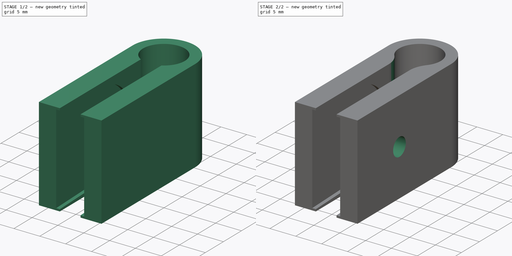
[diagram: build sequence overview — one tinted view per stage of 2, left to right]
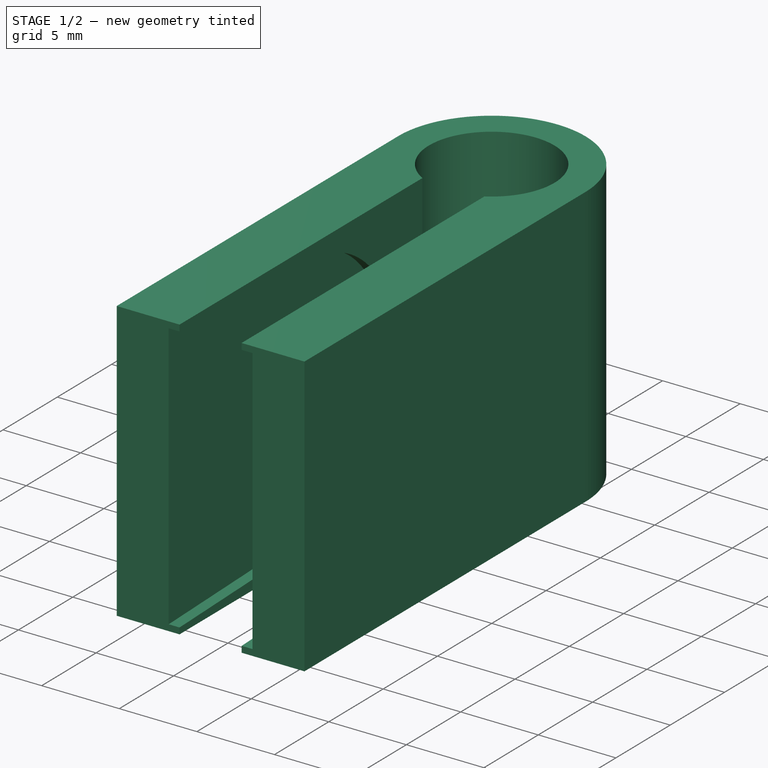
[diagram: stage 1 of 2 — iso view after this stage's code; geometry added in this stage tinted green]
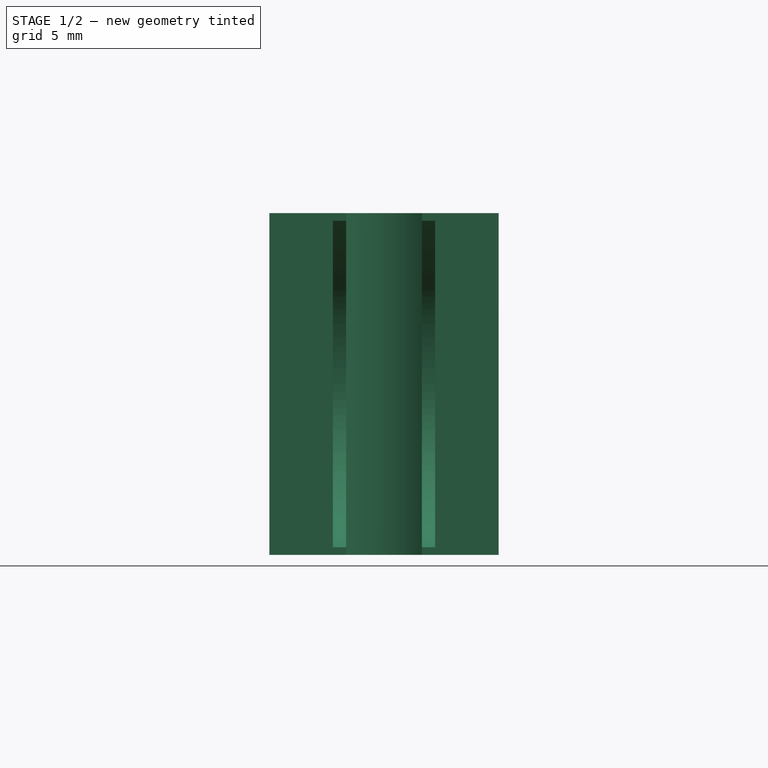
[diagram: stage 1 of 2 — front view after this stage's code; geometry added in this stage tinted green]
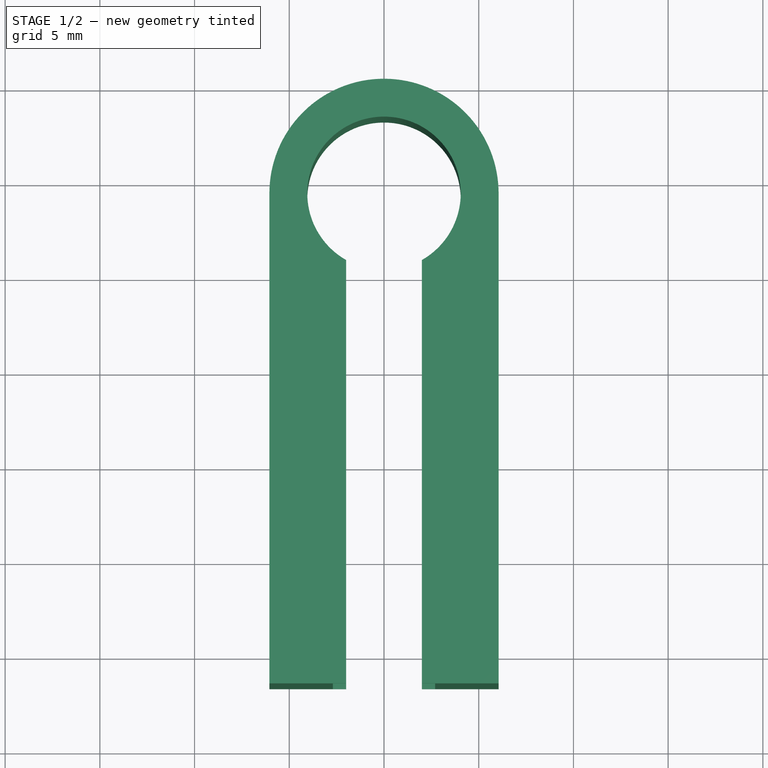
[diagram: stage 1 of 2 — top view after this stage's code; geometry added in this stage tinted green]
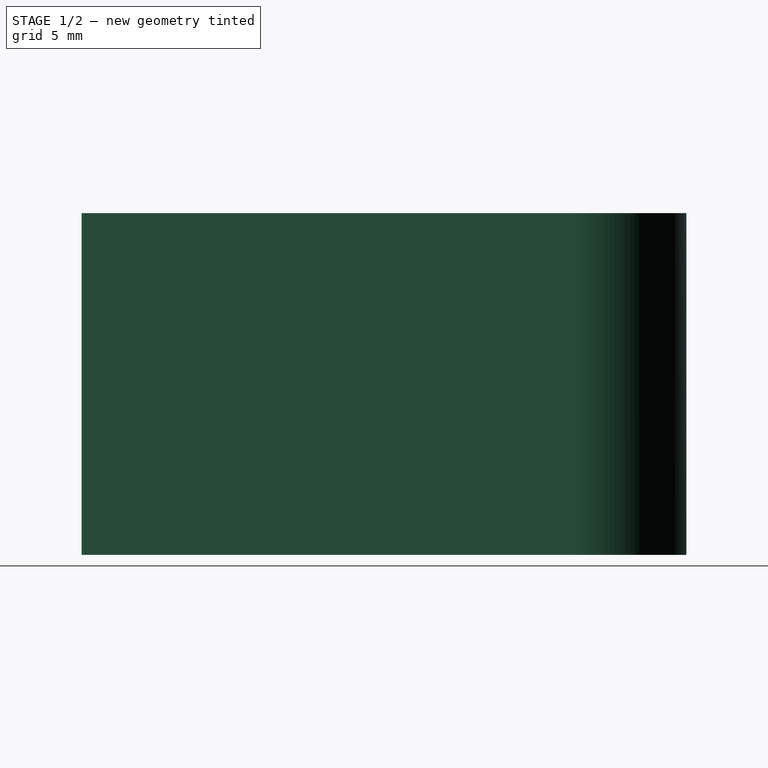
[diagram: stage 1 of 2 — right view after this stage's code; geometry added in this stage tinted green]
FCSTD DOCUMENT  (FreeCAD 0.18.3R)
Label: DialHolder
License: All rights reserved
LicenseURL: http://en.wikipedia.org/wiki/All_rights_reserved
objects: Sketcher::SketchObject×4, PartDesign::Pocket×2, PartDesign::Pad×1, PartDesign::Fillet×1, PartDesign::Body×1, App::Part×1
note: 12 computed .brp shape members not serialized (recipe doc carries the construction recipe); baked Part::Feature solids carry a one-line shape summary decoded from their .brp

FEATURE [Sketcher::SketchObject] Sketch
  MapMode = 5
  Placement = pos=(0,0,0) rot=(0.57735,0.57735,0.57735;2.0944rad)
  Support = -> [YZ_Plane001]
  sketch-geometry (13):
    g0: Circle CenterX=0 CenterY=0 CenterZ=0 NormalX=0 NormalY=0 NormalZ=1 AngleXU=0 Radius=3.45
    g1: ArcOfCircle CenterX=0 CenterY=0 CenterZ=0 NormalX=0 NormalY=0 NormalZ=1 AngleXU=0 Radius=7.80444 StartAngle=4.74611 EndAngle=7.82026
    g2: LineSegment StartX=-11.5956 StartY=8.62064 StartZ=0 EndX=-11.5956 EndY=-8.62064 EndZ=0
    g3: LineSegment [constr] StartX=0 StartY=0 StartZ=0 EndX=-11.5956 EndY=0 EndZ=0
    g4: LineSegment StartX=-11.5956 StartY=8.2 StartZ=0 EndX=0.263099 EndY=7.8 EndZ=0
    g5: LineSegment StartX=-11.5956 StartY=-8.2 StartZ=0 EndX=0.263099 EndY=-7.8 EndZ=0
    g6: GeomPoint X=7.80444 Y=0 Z=0
    g7: LineSegment StartX=-11.5956 StartY=8.62064 StartZ=0 EndX=0.277271 EndY=8.22016 EndZ=0
    g8: LineSegment StartX=-11.5956 StartY=-8.62064 StartZ=0 EndX=0.277273 EndY=-8.22016 EndZ=0
    g9: ArcOfCircle CenterX=0 CenterY=0 CenterZ=0 NormalX=0 NormalY=0 NormalZ=1 AngleXU=0 Radius=8.22484 StartAngle=4.74611 EndAngle=7.82026
    g10: LineSegment [constr] StartX=0.277273 StartY=-8.22016 StartZ=0 EndX=0.263099 EndY=-7.8 EndZ=0
    g11: LineSegment [constr] StartX=0.277271 StartY=8.22016 StartZ=0 EndX=0.263099 EndY=7.8 EndZ=0
    g12: LineSegment StartX=8.22484 StartY=7.95208 StartZ=0 EndX=8.22484 EndY=-7.95208 EndZ=0
  constraints (35):
    c: Coincident(g1,g0)
    c: Radius(g0) = 3.45  'Radius'
    c: Vertical(g2)
    c: Coincident(g3,g0)
    c: PointOnObject(g3,g2)
    c: Tangent(g1,g5) = -1.5708
    c: Tangent(g1,g4) = 1.5708
    c: PointOnObject(g6,g1)
    c: PointOnObject(g6,g3)
    c: DistanceX(g2,g6) = 19.4
    c: DistanceY(g1,g1) = 15.6
    c: Coincident(g9,g0)
    c: Coincident(g9,g8)
    c: Coincident(g9,g7)
    c: Coincident(g10,g8)
    c: Coincident(g10,g1)
    c: Coincident(g11,g7)
    c: Coincident(g11,g1)
    c: PointOnObject(g0,g11)
    c: Equal(g10,g11)
    c: Parallel(g7,g4)
    c: PointOnObject(g4,g2)
    c: Coincident(g2,g8)
    c: Coincident(g2,g7)
    c: Symmetric(g5,g4,g3)
    c: Horizontal(g3)
    c: DistanceY(g5,g4) = 16.4
    c: Parallel(g8,g5)
    c: Distance(g11) = 0.4204
    c: Coincident(g0,g-1)  '__ANCHOR__'
    c: Vertical(g12)
    c: Tangent(g12,g9)
    c: PointOnObject(g12,g7)
    c: PointOnObject(g12,g8)
    c: DistanceY(g2,g2) = 17.2413  'Height'
FEATURE [Sketcher::SketchObject] Sketch001
  ExternalGeometry = -> [Sketch]
  MapMode = 5
  Support = -> [XY_Plane001]
  expr: Constraints[38] = Constraints.Rr + 2mm
  sketch-geometry (15):
    g0: LineSegment [constr] StartX=1.8e-15 StartY=8.22484 StartZ=0 EndX=-2.6e-15 EndY=-11.5956 EndZ=0
    g1: Circle [constr] CenterX=4.3e-15 CenterY=14.2748 CenterZ=0 NormalX=0 NormalY=0 NormalZ=1 AngleXU=0 Radius=4.05
    g2: LineSegment [constr] StartX=-4.05 StartY=18.3248 StartZ=0 EndX=4.05 EndY=18.3248 EndZ=0
    g3: LineSegment [constr] StartX=4.05 StartY=18.3248 StartZ=0 EndX=4.05 EndY=10.2248 EndZ=0
    g4: LineSegment [constr] StartX=4.05 StartY=10.2248 StartZ=0 EndX=-4.05 EndY=10.2248 EndZ=0
    g5: LineSegment [constr] StartX=-4.05 StartY=10.2248 StartZ=0 EndX=-4.05 EndY=18.3248 EndZ=0
    g6: ArcOfCircle CenterX=4.3e-15 CenterY=14.2748 CenterZ=0 NormalX=0 NormalY=0 NormalZ=1 AngleXU=0 Radius=4.05 StartAngle=5.22887 EndAngle=10.4791
    g7: LineSegment StartX=-2 StartY=10.7531 StartZ=0 EndX=-2 EndY=-11.5956 EndZ=0
    g8: LineSegment StartX=2 StartY=10.7531 StartZ=0 EndX=2 EndY=-11.5956 EndZ=0
    g9: LineSegment [constr] StartX=-2 StartY=-11.5956 StartZ=0 EndX=2 EndY=-11.5956 EndZ=0
    g10: ArcOfCircle CenterX=4.3e-15 CenterY=14.2748 CenterZ=0 NormalX=0 NormalY=0 NormalZ=1 AngleXU=0 Radius=6.05 StartAngle=6.27219 EndAngle=9.43292
    g11: LineSegment StartX=-6.0498 StartY=14.2256 StartZ=0 EndX=-6.0498 EndY=-11.5956 EndZ=0
    g12: LineSegment StartX=6.04963 StartY=14.2083 StartZ=0 EndX=6.04963 EndY=-11.5956 EndZ=0
    g13: LineSegment StartX=-6.0498 StartY=-11.5956 StartZ=0 EndX=-2 EndY=-11.5956 EndZ=0
    g14: LineSegment StartX=2 StartY=-11.5956 StartZ=0 EndX=6.04963 EndY=-11.5956 EndZ=0
  constraints (40):
    c: Coincident(g0,g-3)
    c: Coincident(g0,g-4)
    c: Radius(g1) = 4.05  'Rr'
    c: Coincident(g2,g3)
    c: Coincident(g3,g4)
    c: Coincident(g4,g5)
    c: Coincident(g5,g2)
    c: Horizontal(g2)
    c: Horizontal(g4)
    c: Vertical(g3)
    c: Vertical(g5)
    c: Equal(g2,g3)
    c: Tangent(g3,g1)
    c: Tangent(g4,g1)
    c: Tangent(g5,g1)
    c: DistanceY(g0,g4) = 2
    c: Coincident(g6,g1)
    c: PointOnObject(g6,g1)
    c: Symmetric(g6,g6,g0)
    c: Coincident(g7,g6)
    c: Vertical(g7)
    c: Coincident(g8,g6)
    c: Vertical(g8)
    c: Coincident(g9,g7)
    c: Coincident(g9,g8)
    c: Horizontal(g9)
    c: PointOnObject(g0,g9)
    c: Coincident(g10,g6)
    c: Coincident(g11,g10)
    c: Vertical(g11)
    c: Coincident(g12,g10)
    c: Vertical(g12)
    c: Coincident(g13,g11)
    c: Coincident(g13,g7)
    c: Horizontal(g13)
    c: Coincident(g14,g8)
    c: Coincident(g14,g12)
    c: Horizontal(g14)
    c: Radius(g10) = 6.05
    c: DistanceX(g9,g9) = 4
FEATURE [PartDesign::Pad] Pad
  Length = 18.0413
  Length2 = 100
  Midplane = true
  Profile = -> Sketch001
  Type = 0
  expr: Length = Sketch.Constraints.Height + 0.8mm
FEATURE [Sketcher::SketchObject] Sketch002
  ExternalGeometry = -> [Sketch]
  MapMode = 5
  Placement = pos=(0,0,0) rot=(0.57735,0.57735,0.57735;2.0944rad)
  Support = -> [YZ_Plane001]
  sketch-geometry (4):
    g0: ArcOfCircle CenterX=0 CenterY=0 CenterZ=0 NormalX=0 NormalY=0 NormalZ=1 AngleXU=0 Radius=8.22484 StartAngle=4.74611 EndAngle=7.82026
    g1: LineSegment StartX=-11.5956 StartY=8.62064 StartZ=0 EndX=0.277271 EndY=8.22016 EndZ=0
    g2: LineSegment StartX=-11.5956 StartY=8.62064 StartZ=0 EndX=-11.5956 EndY=-8.62064 EndZ=0
    g3: LineSegment StartX=-11.5956 StartY=-8.62064 StartZ=0 EndX=0.277273 EndY=-8.22016 EndZ=0
  constraints (9):
    c: Coincident(g0,g-1)
    c: Coincident(g0,g-3)
    c: Coincident(g0,g-3)
    c: Coincident(g1,g-4)
    c: Coincident(g1,g0)
    c: Coincident(g2,g1)
    c: Coincident(g2,g-4)
    c: Coincident(g3,g2)
    c: Coincident(g3,g0)
FEATURE [PartDesign::Pocket] Pocket
  BaseFeature = -> Pad
  Length = 5.4
  Length2 = 100
  Midplane = true
  Profile = -> Sketch002
  Type = 0
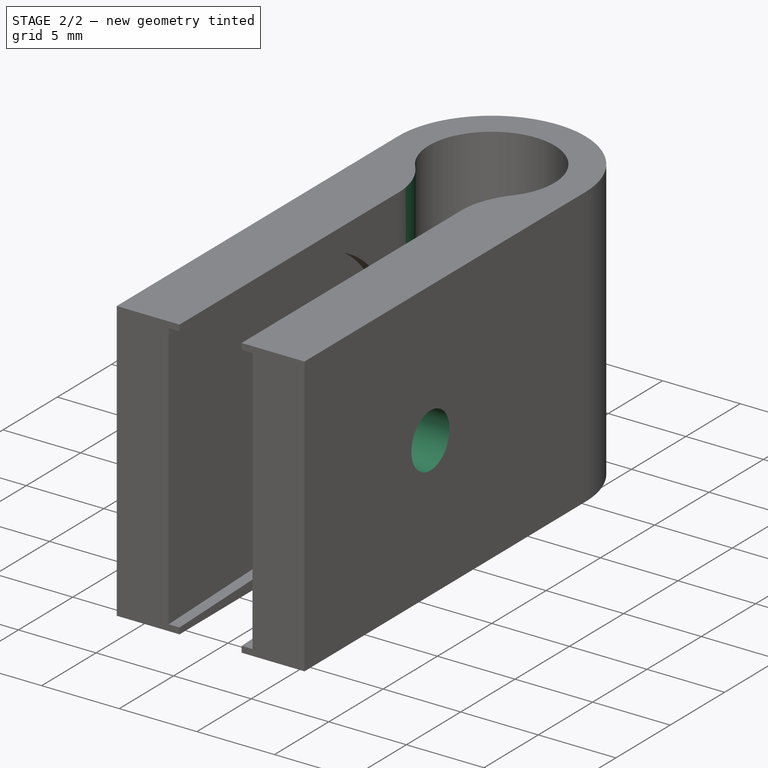
[diagram: stage 2 of 2 — iso view after this stage's code; geometry added in this stage tinted green]
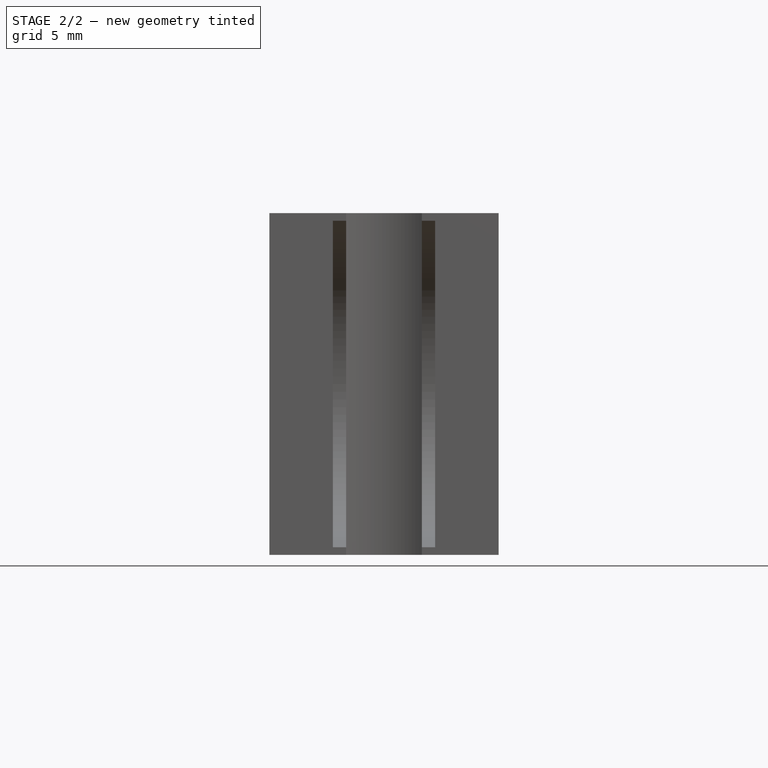
[diagram: stage 2 of 2 — front view after this stage's code; geometry added in this stage tinted green]
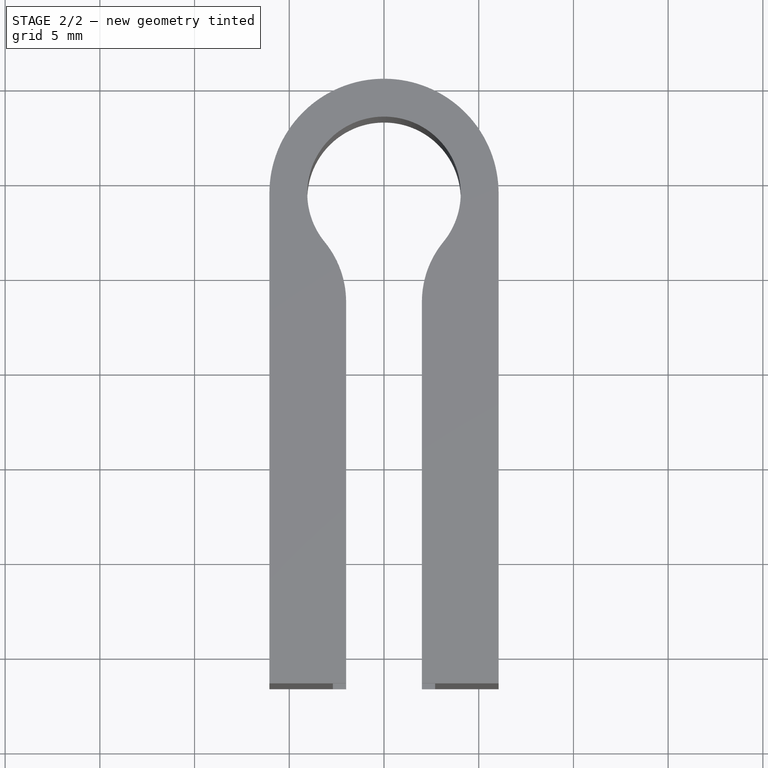
[diagram: stage 2 of 2 — top view after this stage's code; geometry added in this stage tinted green]
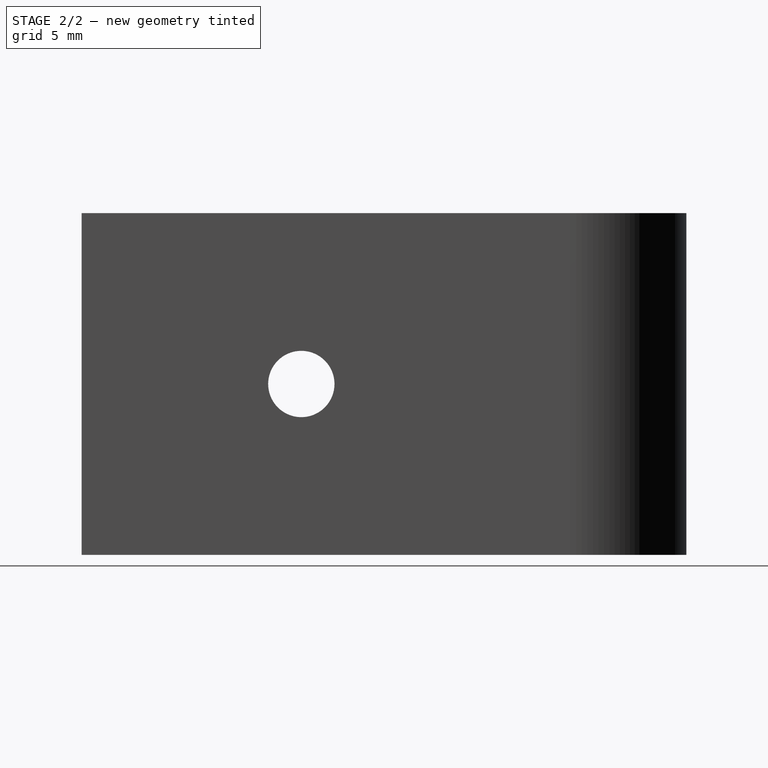
[diagram: stage 2 of 2 — right view after this stage's code; geometry added in this stage tinted green]
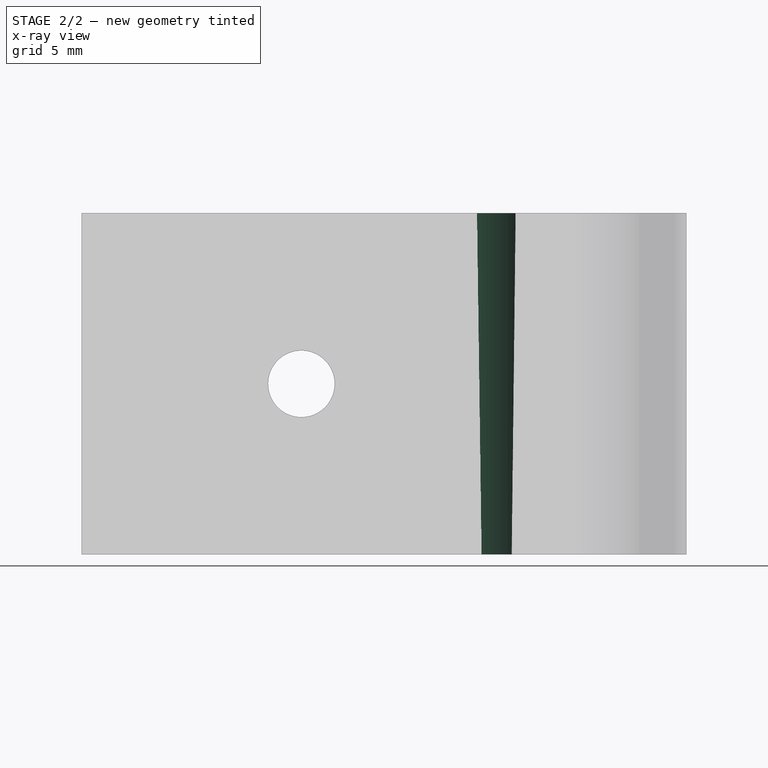
[diagram: stage 2 of 2 — x-ray composite at the right view; earlier geometry ghosted, this stage's added geometry solid]
FEATURE [Sketcher::SketchObject] Sketch003
  ExternalGeometry = -> [Sketch]
  MapMode = 5
  Placement = pos=(0,0,0) rot=(0.57735,0.57735,0.57735;2.0944rad)
  Support = -> [YZ_Plane001]
  sketch-geometry (1):
    g0: Circle CenterX=0 CenterY=0 CenterZ=0 NormalX=0 NormalY=0 NormalZ=1 AngleXU=0 Radius=1.75
  constraints (2):
    c: Coincident(g0,g-1)
    c: Radius(g0) = 1.75
FEATURE [PartDesign::Pocket] Pocket001
  BaseFeature = -> Pocket
  Length = 5
  Length2 = 100
  Midplane = true
  Profile = -> Sketch003
  Refine = true
  Type = 1
FEATURE [PartDesign::Fillet] Fillet
  Base = -> Pocket001 [Edge8,Edge32]
  BaseFeature = -> Pocket001
  Radius = 5
FEATURE [PartDesign::Body] Body
  Group = -> [Sketch,Sketch001,Pad,Sketch002,Pocket,Sketch003,Pocket001,Fillet]
  Origin = -> Origin001
  Tip = -> Fillet
FEATURE [App::Part] Part
  Group = -> [Body]
  Origin = -> Origin
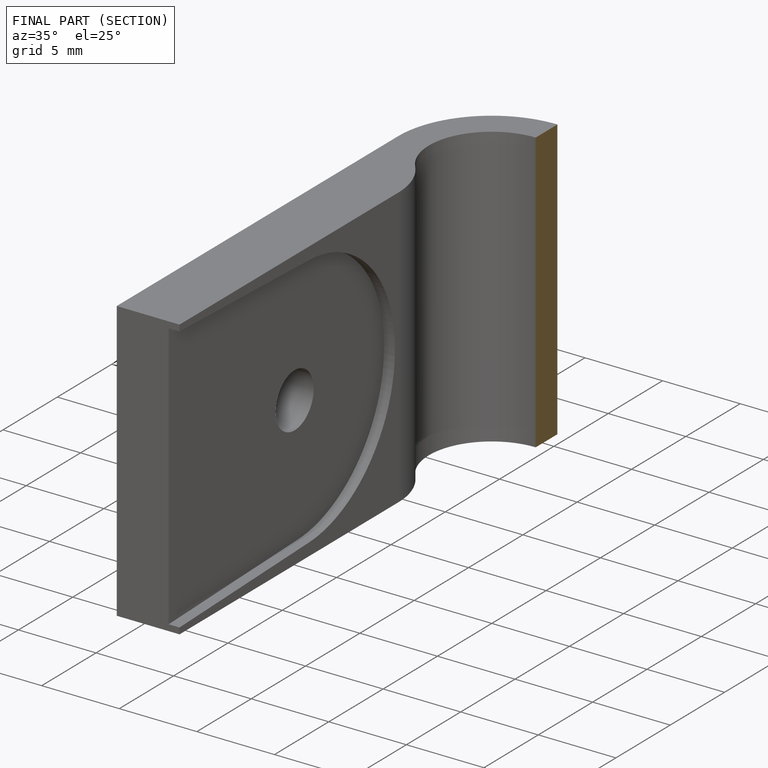
[diagram: finished part — half-section view (interior)]
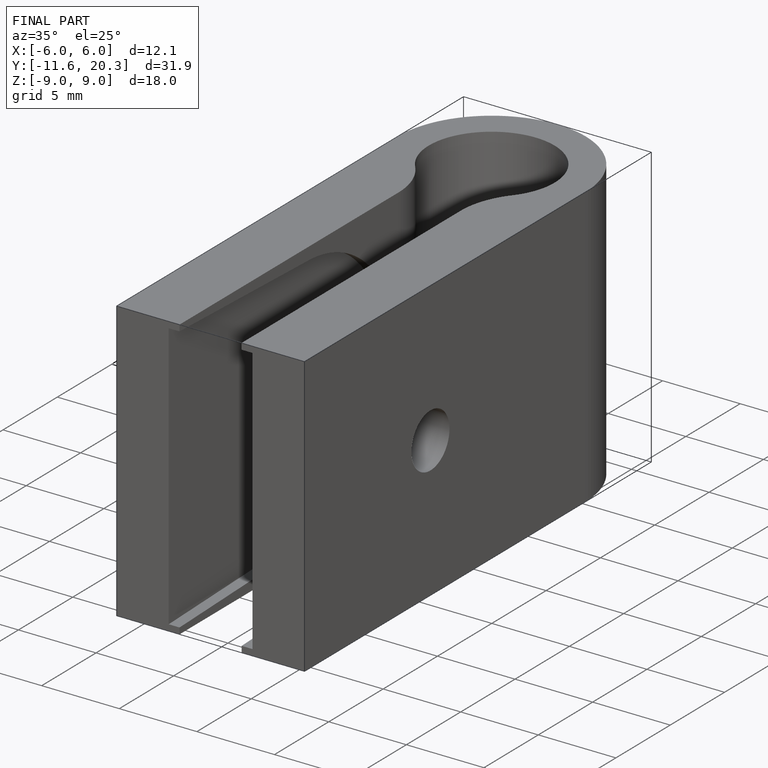
[diagram: finished part — iso view with bounding-box wireframe]
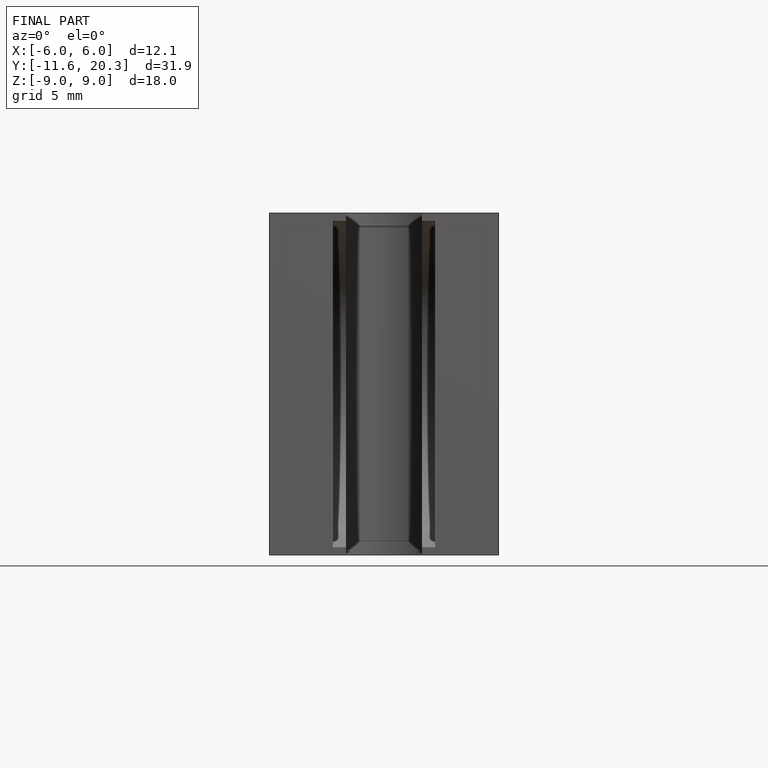
[diagram: finished part — front view with bounding-box wireframe]
